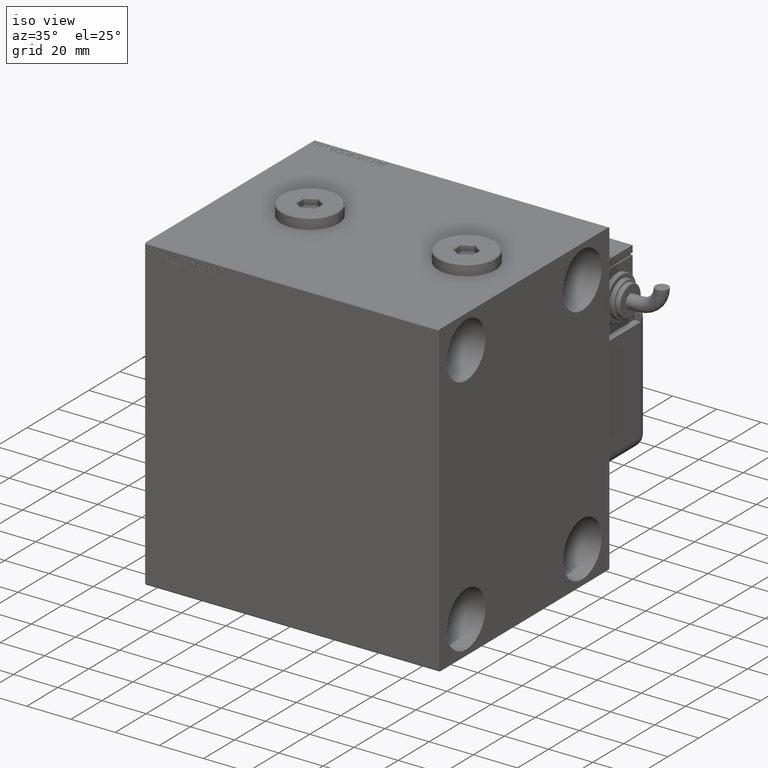
[diagram: clean part render]
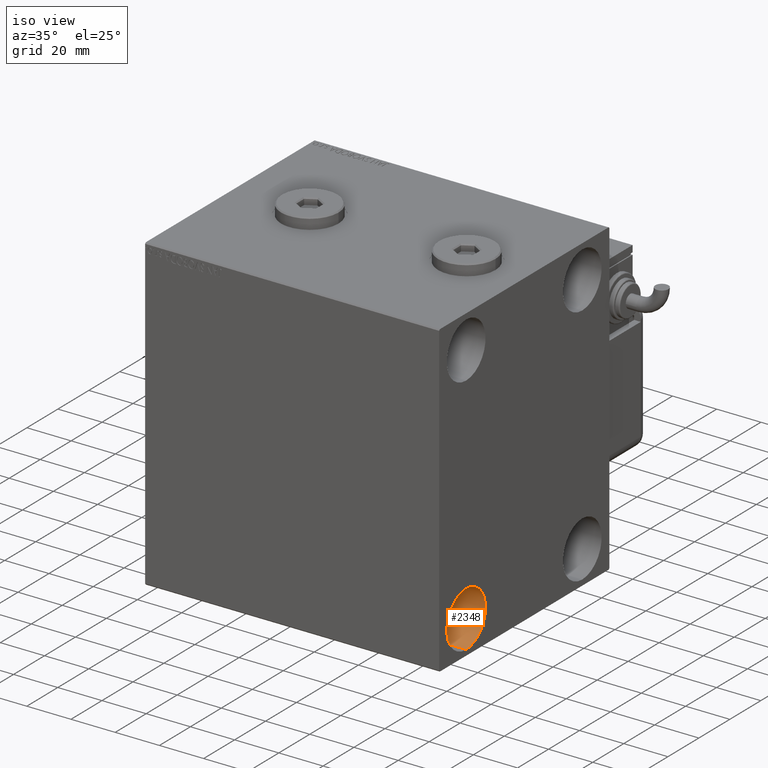
[diagram: same view with one face highlighted and labeled with its STEP entity id]
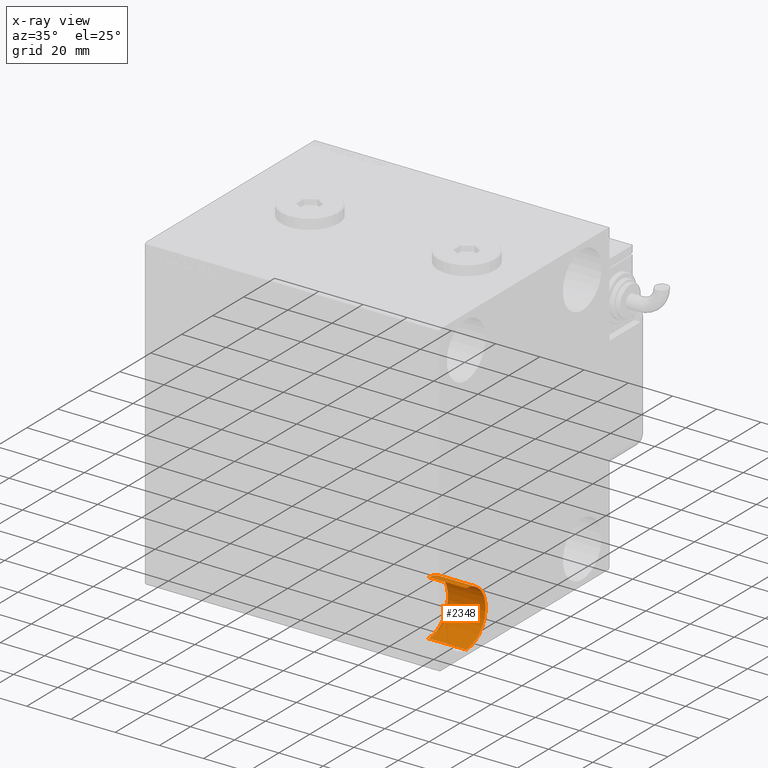
[diagram: x-ray of the same camera — body ghosted, the highlighted face saturated]
A machine part, iso view. The second image highlights one B-rep face of the part: STEP entity #2348.
The next image is the same camera in x-ray: the body ghosted, the highlighted face saturated — about 5% of this face is hidden behind the body in this view.
In plain terms, the highlighted cylindrical surface (edge-blend (fillet) strip) has radius 12.5 mm, axis along (1, 0, 0).
Its self-contained STEP definition (entity closure, byte-faithful):
#126 = CARTESIAN_POINT ( 'NONE',  ( 116.0000000000000000, -37.50000000000002132, -42.49999999999999289 ) ) ;
#418 = DIRECTION ( 'NONE',  ( 0.000000000000000000, 0.000000000000000000, -1.000000000000000000 ) ) ;
#1899 = VECTOR ( 'NONE', #18415, 1000.000000000000000 ) ;
#2067 = CARTESIAN_POINT ( 'NONE',  ( 133.0000000000000000, -37.50000000000002132, -42.49999999999999289 ) ) ;
#2348 = ADVANCED_FACE ( 'NONE', ( #56666 ), #37817, .F. ) ;
#4730 = ORIENTED_EDGE ( 'NONE', *, *, #52794, .T. ) ;
#4755 = DIRECTION ( 'NONE',  ( 1.000000000000000000, -0.000000000000000000, -0.000000000000000000 ) ) ;
#4759 = VERTEX_POINT ( 'NONE', #41726 ) ;
#6508 = CARTESIAN_POINT ( 'NONE',  ( 116.0000000000000000, -37.50000000000002132, -67.49999999999998579 ) ) ;
#7694 = ORIENTED_EDGE ( 'NONE', *, *, #33119, .F. ) ;
#7804 = DIRECTION ( 'NONE',  ( -1.000000000000000000, -0.000000000000000000, -0.000000000000000000 ) ) ;
#13676 = CIRCLE ( 'NONE', #51190, 12.49999999999999645 ) ;
#13709 = DIRECTION ( 'NONE',  ( 1.000000000000000000, -0.000000000000000000, -0.000000000000000000 ) ) ;
#14090 = AXIS2_PLACEMENT_3D ( 'NONE', #21583, #45105, #54061 ) ;
#18304 = VERTEX_POINT ( 'NONE', #54447 ) ;
#18359 = LINE ( 'NONE', #126, #41072 ) ;
#18415 = DIRECTION ( 'NONE',  ( 1.000000000000000000, -0.000000000000000000, -0.000000000000000000 ) ) ;
#21583 = CARTESIAN_POINT ( 'NONE',  ( 133.0000000000000000, -37.50000000000002132, -54.99999999999999289 ) ) ;
#21661 = AXIS2_PLACEMENT_3D ( 'NONE', #52010, #13709, #418 ) ;
#22204 = EDGE_CURVE ( 'NONE', #56485, #18304, #40779, .T. ) ;
#23142 = EDGE_LOOP ( 'NONE', ( #7694, #26787, #4730, #39204 ) ) ;
#23267 = VERTEX_POINT ( 'NONE', #6508 ) ;
#23950 = LINE ( 'NONE', #51793, #1899 ) ;
#24804 = CARTESIAN_POINT ( 'NONE',  ( 116.0000000000000000, -37.50000000000002132, -54.99999999999999289 ) ) ;
#26787 = ORIENTED_EDGE ( 'NONE', *, *, #43384, .T. ) ;
#33119 = EDGE_CURVE ( 'NONE', #4759, #56485, #18359, .T. ) ;
#37817 = CYLINDRICAL_SURFACE ( 'NONE', #21661, 12.49999999999999645 ) ;
#39204 = ORIENTED_EDGE ( 'NONE', *, *, #22204, .F. ) ;
#40779 = CIRCLE ( 'NONE', #14090, 12.49999999999999645 ) ;
#41072 = VECTOR ( 'NONE', #4755, 1000.000000000000000 ) ;
#41726 = CARTESIAN_POINT ( 'NONE',  ( 116.0000000000000000, -37.50000000000002132, -42.49999999999999289 ) ) ;
#43384 = EDGE_CURVE ( 'NONE', #4759, #23267, #13676, .T. ) ;
#45105 = DIRECTION ( 'NONE',  ( -1.000000000000000000, -0.000000000000000000, -0.000000000000000000 ) ) ;
#51190 = AXIS2_PLACEMENT_3D ( 'NONE', #24804, #7804, #54782 ) ;
#51793 = CARTESIAN_POINT ( 'NONE',  ( 116.0000000000000000, -37.50000000000002132, -67.49999999999998579 ) ) ;
#52010 = CARTESIAN_POINT ( 'NONE',  ( 116.0000000000000000, -37.50000000000002132, -54.99999999999999289 ) ) ;
#52794 = EDGE_CURVE ( 'NONE', #23267, #18304, #23950, .T. ) ;
#54061 = DIRECTION ( 'NONE',  ( 0.000000000000000000, 0.000000000000000000, 1.000000000000000000 ) ) ;
#54447 = CARTESIAN_POINT ( 'NONE',  ( 133.0000000000000000, -37.50000000000002132, -67.49999999999998579 ) ) ;
#54782 = DIRECTION ( 'NONE',  ( 0.000000000000000000, 0.000000000000000000, 1.000000000000000000 ) ) ;
#56485 = VERTEX_POINT ( 'NONE', #2067 ) ;
#56666 = FACE_OUTER_BOUND ( 'NONE', #23142, .T. ) ;